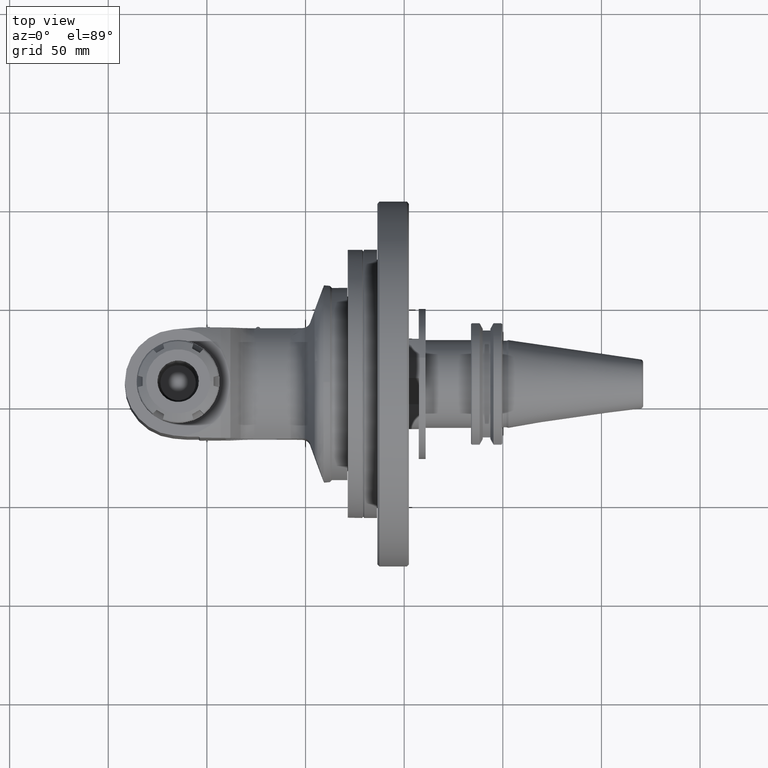
[diagram: clean part render]
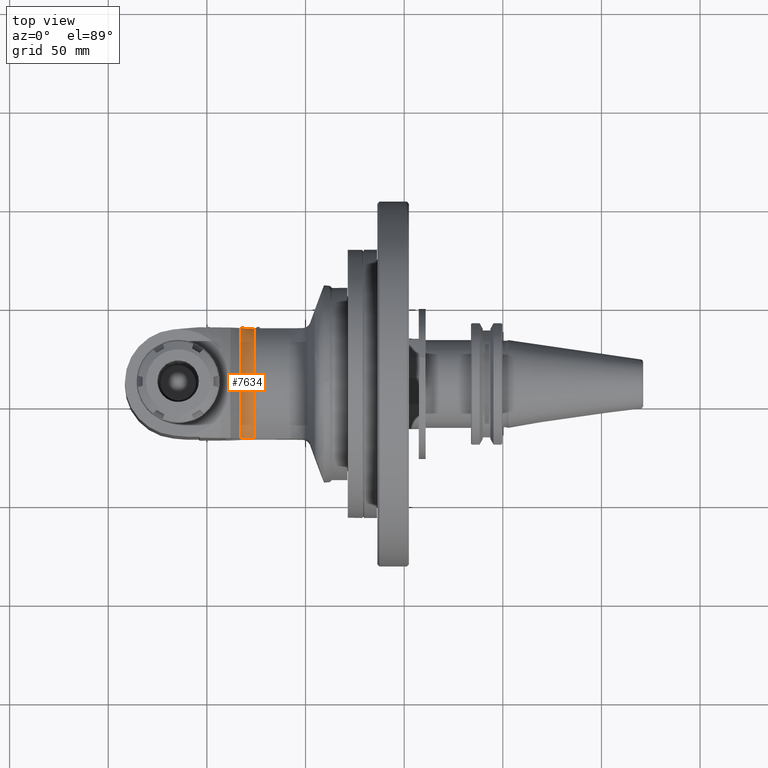
[diagram: same view with one face highlighted and labeled with its STEP entity id]
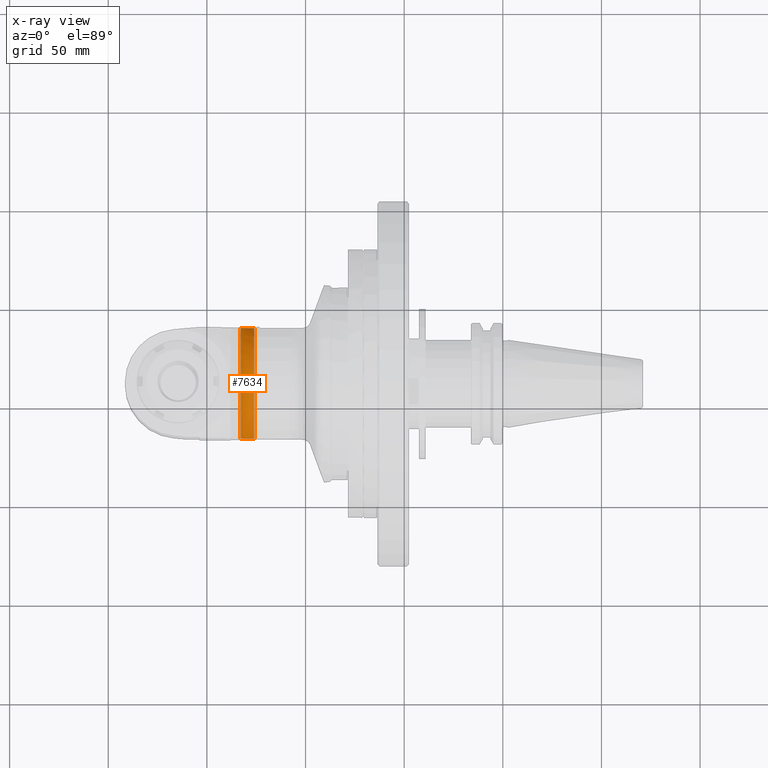
[diagram: x-ray of the same camera — body ghosted, the highlighted face saturated]
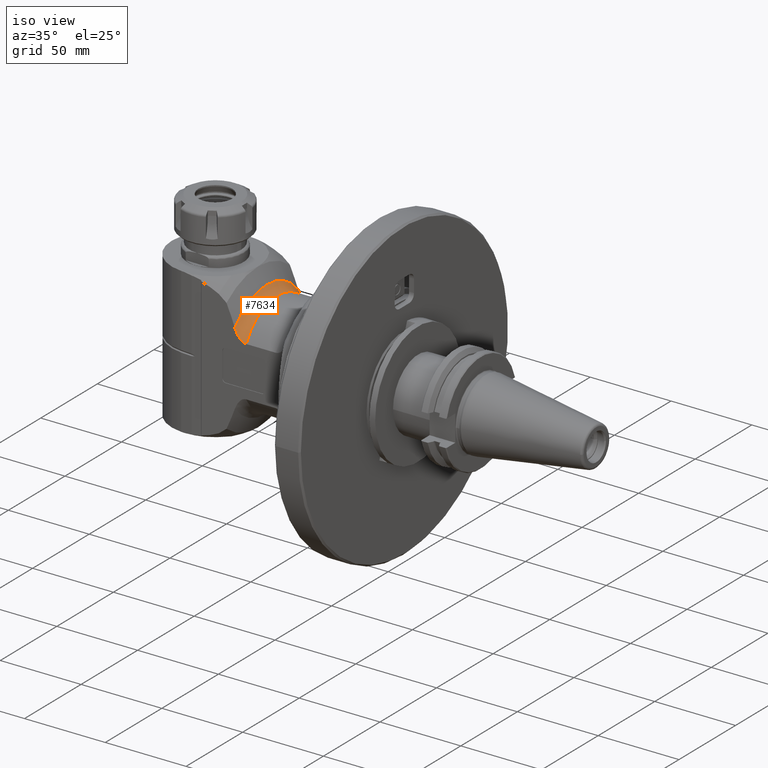
[diagram: same view with one face highlighted and labeled with its STEP entity id]
A machine part, top view. The second image highlights one B-rep face of the part: STEP entity #7634.
The next image is the same camera in x-ray: the body ghosted, the highlighted face saturated — about 0% of this face is hidden behind the body in this view.
A second angle (iso view) of the same face is appended — the face is thin or edge-on in the first view.
In plain terms, the highlighted toroidal blend (fillet) surface has major radius 40 mm and minor (blend) radius 8 mm.
Its self-contained STEP definition (entity closure, byte-faithful):
#168=TOROIDAL_SURFACE('',#8192,1.5748031496063,0.31496062992126);
#412=B_SPLINE_CURVE_WITH_KNOTS('',3,(#11438,#11439,#11440,#11441,#11442,
#11443,#11444,#11445,#11446,#11447,#11448,#11449,#11450,#11451),
 .UNSPECIFIED.,.F.,.F.,(4,2,2,2,2,2,4),(-3.92313274375493,-3.77858431950851,
-3.54205696695616,-3.36013929421605,-3.17822162147595,-3.04862540059965,
-2.93602857360432),.UNSPECIFIED.);
#421=B_SPLINE_CURVE_WITH_KNOTS('',3,(#11605,#11606,#11607,#11608,#11609,
#11610,#11611,#11612,#11613,#11614,#11615,#11616,#11617,#11618),
 .UNSPECIFIED.,.F.,.F.,(4,2,2,2,2,2,4),(-3.9243895348401,-3.85672178121539,
-3.6417920743864,-3.42626231511953,-3.21073255585266,-3.06178101041217,
-2.93597407218818),.UNSPECIFIED.);
#598=CIRCLE('',#8191,1.25984251968504);
#599=CIRCLE('',#8193,1.41732283464567);
#966=FACE_OUTER_BOUND('',#1448,.T.);
#1448=EDGE_LOOP('',(#5114,#5115,#5116,#5117));
#3147=VERTEX_POINT('',#11435);
#3148=VERTEX_POINT('',#11437);
#3172=VERTEX_POINT('',#11599);
#3173=VERTEX_POINT('',#11603);
#3913=EDGE_CURVE('',#3148,#3147,#412,.T.);
#3942=EDGE_CURVE('',#3147,#3172,#598,.T.);
#3943=EDGE_CURVE('',#3148,#3173,#599,.T.);
#3944=EDGE_CURVE('',#3173,#3172,#421,.T.);
#5114=ORIENTED_EDGE('',*,*,#3943,.F.);
#5115=ORIENTED_EDGE('',*,*,#3913,.T.);
#5116=ORIENTED_EDGE('',*,*,#3942,.T.);
#5117=ORIENTED_EDGE('',*,*,#3944,.F.);
#7634=ADVANCED_FACE('',(#966),#168,.F.);
#8191=AXIS2_PLACEMENT_3D('',#11601,#9111,#9112);
#8192=AXIS2_PLACEMENT_3D('',#11602,#9113,#9114);
#8193=AXIS2_PLACEMENT_3D('',#11604,#9115,#9116);
#9111=DIRECTION('center_axis',(1.,0.,0.));
#9112=DIRECTION('ref_axis',(0.,-1.,0.));
#9113=DIRECTION('center_axis',(1.,0.,0.));
#9114=DIRECTION('ref_axis',(0.,-1.,0.));
#9115=DIRECTION('center_axis',(1.,0.,0.));
#9116=DIRECTION('ref_axis',(0.,-0.628539361054693,0.777777777777791));
#11435=CARTESIAN_POINT('',(1.94414164749913,-0.609918637198032,1.10236220472441));
#11437=CARTESIAN_POINT('',(2.21690555420307,-0.890843188896457,1.10236220472441));
#11438=CARTESIAN_POINT('Ctrl Pts',(2.21690555420292,-0.890843188896511,
1.10236220472441));
#11439=CARTESIAN_POINT('Ctrl Pts',(2.21004720649271,-0.871943804981816,
1.10236220472441));
#11440=CARTESIAN_POINT('Ctrl Pts',(2.20214858759577,-0.852710079953254,
1.10236220472441));
#11441=CARTESIAN_POINT('Ctrl Pts',(2.17902779366588,-0.803106865547371,
1.10236220472441));
#11442=CARTESIAN_POINT('Ctrl Pts',(2.1622691562847,-0.773467351676783,1.10236220472441));
#11443=CARTESIAN_POINT('Ctrl Pts',(2.13142148411571,-0.728036376621218,
1.10236220472441));
#11444=CARTESIAN_POINT('Ctrl Pts',(2.11537073099145,-0.707291425706548,
1.10236220472441));
#11445=CARTESIAN_POINT('Ctrl Pts',(2.07955389597933,-0.669610331500759,
1.10236220472441));
#11446=CARTESIAN_POINT('Ctrl Pts',(2.05974404819334,-0.652715813008636,
1.10236220472441));
#11447=CARTESIAN_POINT('Ctrl Pts',(2.02520626329871,-0.630843346219758,
1.10236220472441));
#11448=CARTESIAN_POINT('Ctrl Pts',(2.00683357583045,-0.621957083575724,
1.10236220472441));
#11449=CARTESIAN_POINT('Ctrl Pts',(1.9764334152361,-0.612681077884935,1.10236220472441));
#11450=CARTESIAN_POINT('Ctrl Pts',(1.95891813398146,-0.609918637198018,
1.10236220472441));
#11451=CARTESIAN_POINT('Ctrl Pts',(1.94414164749913,-0.609918637198018,
1.10236220472441));
#11599=CARTESIAN_POINT('',(1.94414164749913,-0.609918637198032,-1.10236220472441));
#11601=CARTESIAN_POINT('Origin',(1.94414164749913,0.,0.));
#11602=CARTESIAN_POINT('Origin',(1.94414164749913,0.,0.));
#11603=CARTESIAN_POINT('',(2.21690555420307,-0.890843188896457,-1.10236220472441));
#11604=CARTESIAN_POINT('Origin',(2.21690555420307,0.,0.));
#11605=CARTESIAN_POINT('Ctrl Pts',(2.21690555420292,-0.890843188896511,
-1.10236220472441));
#11606=CARTESIAN_POINT('Ctrl Pts',(2.21361419797698,-0.881773277666822,
-1.10236220472441));
#11607=CARTESIAN_POINT('Ctrl Pts',(2.21010989721683,-0.87269228425824,-1.10236220472441));
#11608=CARTESIAN_POINT('Ctrl Pts',(2.19469217325962,-0.835094553158507,
-1.10236220472441));
#11609=CARTESIAN_POINT('Ctrl Pts',(2.18098631910752,-0.807321322540138,
-1.10236220472441));
#11610=CARTESIAN_POINT('Ctrl Pts',(2.15267911062022,-0.758434657097314,
-1.10236220472441));
#11611=CARTESIAN_POINT('Ctrl Pts',(2.1353915916447,-0.732619663498113,-1.10236220472441));
#11612=CARTESIAN_POINT('Ctrl Pts',(2.09601385271911,-0.685336707334489,
-1.10236220472441));
#11613=CARTESIAN_POINT('Ctrl Pts',(2.07388877650661,-0.663897784311517,
-1.10236220472441));
#11614=CARTESIAN_POINT('Ctrl Pts',(2.03490331997977,-0.636184018925863,
-1.10236220472441));
#11615=CARTESIAN_POINT('Ctrl Pts',(2.01430276847365,-0.62496594699931,-1.10236220472441));
#11616=CARTESIAN_POINT('Ctrl Pts',(1.98016115925861,-0.613368663514366,
-1.10236220472441));
#11617=CARTESIAN_POINT('Ctrl Pts',(1.96065174437892,-0.609918637198018,
-1.10236220472441));
#11618=CARTESIAN_POINT('Ctrl Pts',(1.94414164749913,-0.609918637198018,
-1.10236220472441));